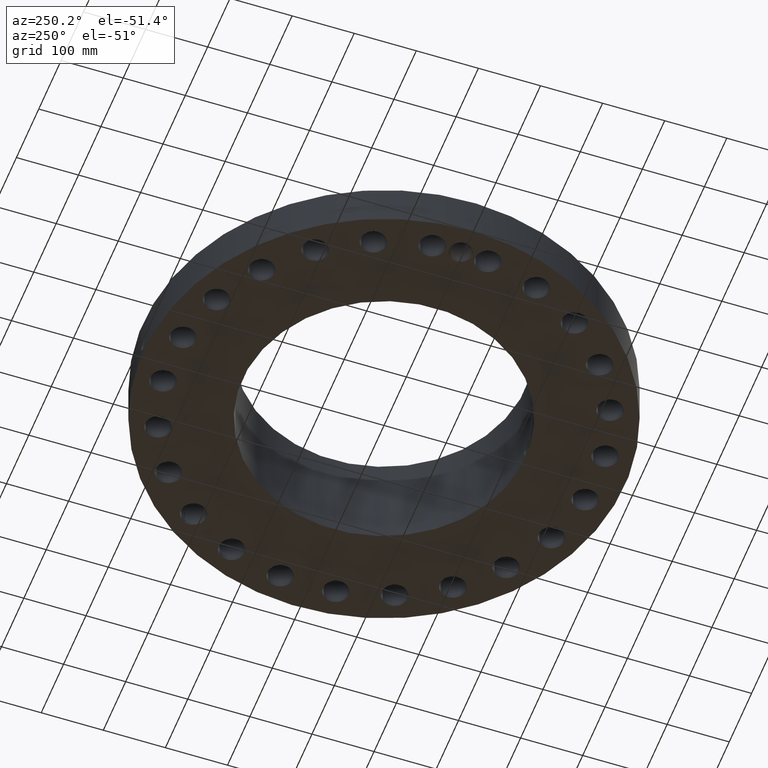
[diagram: clean part render]
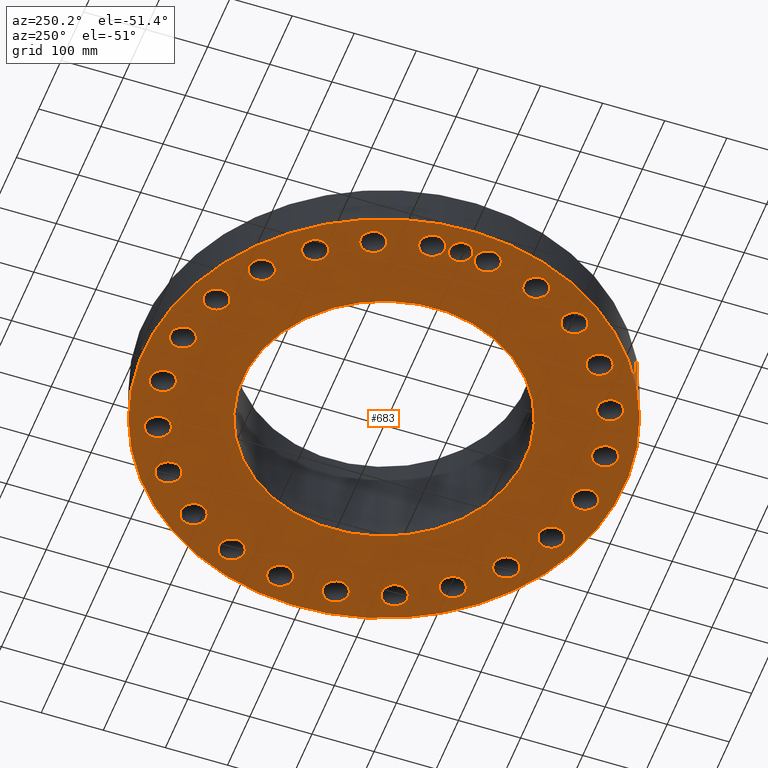
[diagram: same view with one face highlighted and labeled with its STEP entity id]
A machine part, auxiliary view. The second image highlights one B-rep face of the part: STEP entity #683.
In plain terms, the highlighted planar face has unit normal (0, 0, -1).
Its self-contained STEP definition (entity closure, byte-faithful):
#42=AXIS2_PLACEMENT_3D('Circle Axis2P3D',#40,#41,$) ;
#165=AXIS2_PLACEMENT_3D('Plane Axis2P3D',#162,#163,#164) ;
#169=AXIS2_PLACEMENT_3D('Circle Axis2P3D',#167,#168,$) ;
#216=AXIS2_PLACEMENT_3D('Circle Axis2P3D',#214,#215,$) ;
#223=AXIS2_PLACEMENT_3D('Circle Axis2P3D',#221,#222,$) ;
#235=AXIS2_PLACEMENT_3D('Circle Axis2P3D',#233,#234,$) ;
#244=AXIS2_PLACEMENT_3D('Circle Axis2P3D',#242,#243,$) ;
#253=AXIS2_PLACEMENT_3D('Circle Axis2P3D',#251,#252,$) ;
#262=AXIS2_PLACEMENT_3D('Circle Axis2P3D',#260,#261,$) ;
#271=AXIS2_PLACEMENT_3D('Circle Axis2P3D',#269,#270,$) ;
#280=AXIS2_PLACEMENT_3D('Circle Axis2P3D',#278,#279,$) ;
#289=AXIS2_PLACEMENT_3D('Circle Axis2P3D',#287,#288,$) ;
#298=AXIS2_PLACEMENT_3D('Circle Axis2P3D',#296,#297,$) ;
#307=AXIS2_PLACEMENT_3D('Circle Axis2P3D',#305,#306,$) ;
#316=AXIS2_PLACEMENT_3D('Circle Axis2P3D',#314,#315,$) ;
#325=AXIS2_PLACEMENT_3D('Circle Axis2P3D',#323,#324,$) ;
#334=AXIS2_PLACEMENT_3D('Circle Axis2P3D',#332,#333,$) ;
#343=AXIS2_PLACEMENT_3D('Circle Axis2P3D',#341,#342,$) ;
#352=AXIS2_PLACEMENT_3D('Circle Axis2P3D',#350,#351,$) ;
#361=AXIS2_PLACEMENT_3D('Circle Axis2P3D',#359,#360,$) ;
#370=AXIS2_PLACEMENT_3D('Circle Axis2P3D',#368,#369,$) ;
#379=AXIS2_PLACEMENT_3D('Circle Axis2P3D',#377,#378,$) ;
#388=AXIS2_PLACEMENT_3D('Circle Axis2P3D',#386,#387,$) ;
#397=AXIS2_PLACEMENT_3D('Circle Axis2P3D',#395,#396,$) ;
#406=AXIS2_PLACEMENT_3D('Circle Axis2P3D',#404,#405,$) ;
#415=AXIS2_PLACEMENT_3D('Circle Axis2P3D',#413,#414,$) ;
#424=AXIS2_PLACEMENT_3D('Circle Axis2P3D',#422,#423,$) ;
#433=AXIS2_PLACEMENT_3D('Circle Axis2P3D',#431,#432,$) ;
#442=AXIS2_PLACEMENT_3D('Circle Axis2P3D',#440,#441,$) ;
#451=AXIS2_PLACEMENT_3D('Circle Axis2P3D',#449,#450,$) ;
#460=AXIS2_PLACEMENT_3D('Circle Axis2P3D',#458,#459,$) ;
#469=AXIS2_PLACEMENT_3D('Circle Axis2P3D',#467,#468,$) ;
#478=AXIS2_PLACEMENT_3D('Circle Axis2P3D',#476,#477,$) ;
#487=AXIS2_PLACEMENT_3D('Circle Axis2P3D',#485,#486,$) ;
#496=AXIS2_PLACEMENT_3D('Circle Axis2P3D',#494,#495,$) ;
#505=AXIS2_PLACEMENT_3D('Circle Axis2P3D',#503,#504,$) ;
#514=AXIS2_PLACEMENT_3D('Circle Axis2P3D',#512,#513,$) ;
#523=AXIS2_PLACEMENT_3D('Circle Axis2P3D',#521,#522,$) ;
#532=AXIS2_PLACEMENT_3D('Circle Axis2P3D',#530,#531,$) ;
#541=AXIS2_PLACEMENT_3D('Circle Axis2P3D',#539,#540,$) ;
#550=AXIS2_PLACEMENT_3D('Circle Axis2P3D',#548,#549,$) ;
#559=AXIS2_PLACEMENT_3D('Circle Axis2P3D',#557,#558,$) ;
#568=AXIS2_PLACEMENT_3D('Circle Axis2P3D',#566,#567,$) ;
#577=AXIS2_PLACEMENT_3D('Circle Axis2P3D',#575,#576,$) ;
#586=AXIS2_PLACEMENT_3D('Circle Axis2P3D',#584,#585,$) ;
#595=AXIS2_PLACEMENT_3D('Circle Axis2P3D',#593,#594,$) ;
#604=AXIS2_PLACEMENT_3D('Circle Axis2P3D',#602,#603,$) ;
#613=AXIS2_PLACEMENT_3D('Circle Axis2P3D',#611,#612,$) ;
#622=AXIS2_PLACEMENT_3D('Circle Axis2P3D',#620,#621,$) ;
#631=AXIS2_PLACEMENT_3D('Circle Axis2P3D',#629,#630,$) ;
#640=AXIS2_PLACEMENT_3D('Circle Axis2P3D',#638,#639,$) ;
#649=AXIS2_PLACEMENT_3D('Circle Axis2P3D',#647,#648,$) ;
#658=AXIS2_PLACEMENT_3D('Circle Axis2P3D',#656,#657,$) ;
#667=AXIS2_PLACEMENT_3D('Circle Axis2P3D',#665,#666,$) ;
#676=AXIS2_PLACEMENT_3D('Circle Axis2P3D',#674,#675,$) ;
#40=CARTESIAN_POINT('Axis2P3D Location',(0.,0.,0.250000000001)) ;
#44=CARTESIAN_POINT('Vertex',(-7.31123946374,-13.3831340689,0.250000000001)) ;
#46=CARTESIAN_POINT('Vertex',(7.31123946374,13.3831340689,0.250000000001)) ;
#162=CARTESIAN_POINT('Axis2P3D Location',(0.,8.96900000004,0.250000000001)) ;
#167=CARTESIAN_POINT('Axis2P3D Location',(0.,0.,0.250000000001)) ;
#177=CARTESIAN_POINT('Control Point',(-14.2499476785,2.07864575008E-006,0.250000000001)) ;
#178=CARTESIAN_POINT('Control Point',(-14.2476831419,0.0673864982361,0.250000000001)) ;
#179=CARTESIAN_POINT('Control Point',(-14.2378458435,0.134396254622,0.250000000001)) ;
#180=CARTESIAN_POINT('Control Point',(-14.2204993121,0.199863901841,0.250000000001)) ;
#181=CARTESIAN_POINT('Control Point',(-14.1815355115,0.299612610858,0.250000000001)) ;
#182=CARTESIAN_POINT('Control Point',(-14.125856085,0.390120518393,0.250000000001)) ;
#183=CARTESIAN_POINT('Control Point',(-14.1030490587,0.422178490501,0.250000000001)) ;
#184=CARTESIAN_POINT('Control Point',(-14.078202157,0.45257954574,0.250000000001)) ;
#185=CARTESIAN_POINT('Control Point',(-14.0514780087,0.481158000666,0.250000000001)) ;
#186=CARTESIAN_POINT('Vertex',(-14.2499476785,2.07864575148E-006,0.250000000001)) ;
#188=CARTESIAN_POINT('Vertex',(-14.0514780087,0.481158000666,0.250000000001)) ;
#192=CARTESIAN_POINT('Control Point',(-14.2499983879,-0.00155505615411,0.250000000001)) ;
#193=CARTESIAN_POINT('Control Point',(-14.2499885695,-0.00124361367339,0.250000000001)) ;
#194=CARTESIAN_POINT('Control Point',(-14.2499785894,-0.000932178854725,0.250000000001)) ;
#195=CARTESIAN_POINT('Control Point',(-14.2499684475,-0.00062075166267,0.250000000001)) ;
#196=CARTESIAN_POINT('Control Point',(-14.2499581439,-0.00030933250765,0.250000000001)) ;
#197=CARTESIAN_POINT('Control Point',(-14.2499476785,2.07864575232E-006,0.250000000001)) ;
#198=CARTESIAN_POINT('Vertex',(-14.2499983879,-0.00155505615411,0.250000000001)) ;
#202=CARTESIAN_POINT('Control Point',(-14.2499983879,-0.00155505615411,0.250000000001)) ;
#203=CARTESIAN_POINT('Control Point',(-14.2475950517,-0.0689187517196,0.250000000001)) ;
#204=CARTESIAN_POINT('Control Point',(-14.2376238653,-0.135892163343,0.250000000001)) ;
#205=CARTESIAN_POINT('Control Point',(-14.2201409335,-0.20133112632,0.250000000001)) ;
#206=CARTESIAN_POINT('Control Point',(-14.1808725815,-0.301253032829,0.250000000001)) ;
#207=CARTESIAN_POINT('Control Point',(-14.1247918713,-0.391902477713,0.250000000001)) ;
#208=CARTESIAN_POINT('Control Point',(-14.1017334297,-0.424114174655,0.250000000001)) ;
#209=CARTESIAN_POINT('Control Point',(-14.0766075788,-0.454645281021,0.250000000001)) ;
#210=CARTESIAN_POINT('Control Point',(-14.0495799877,-0.483324790223,0.250000000001)) ;
#211=CARTESIAN_POINT('Vertex',(-14.0495799877,-0.483324790223,0.250000000001)) ;
#214=CARTESIAN_POINT('Axis2P3D Location',(-13.5000000001,0.,0.250000000001)) ;
#218=CARTESIAN_POINT('Vertex',(-12.8577192626,-0.350879566067,0.250000000001)) ;
#221=CARTESIAN_POINT('Axis2P3D Location',(-13.5000000001,0.,0.250000000001)) ;
#233=CARTESIAN_POINT('Axis2P3D Location',(13.3845056286,-1.76210359498,0.250000000001)) ;
#237=CARTESIAN_POINT('Vertex',(14.0953475037,-2.15043828125,0.250000000001)) ;
#239=CARTESIAN_POINT('Vertex',(12.6736637535,-1.37376890871,0.250000000001)) ;
#242=CARTESIAN_POINT('Axis2P3D Location',(13.3845056286,-1.76210359498,0.250000000001)) ;
#251=CARTESIAN_POINT('Axis2P3D Location',(0.,0.,0.250000000001)) ;
#255=CARTESIAN_POINT('Vertex',(4.29996765576,7.87103799763,0.250000000001)) ;
#257=CARTESIAN_POINT('Vertex',(-4.29996765576,-7.87103799763,0.250000000001)) ;
#260=CARTESIAN_POINT('Axis2P3D Location',(0.,0.,0.250000000001)) ;
#269=CARTESIAN_POINT('Axis2P3D Location',(12.472373689,-5.16622633695,0.250000000001)) ;
#273=CARTESIAN_POINT('Vertex',(11.886261576,-4.6071444189,0.250000000001)) ;
#275=CARTESIAN_POINT('Vertex',(13.0584858019,-5.725308255,0.250000000001)) ;
#278=CARTESIAN_POINT('Axis2P3D Location',(12.472373689,-5.16622633695,0.250000000001)) ;
#287=CARTESIAN_POINT('Axis2P3D Location',(10.710270094,-8.21827929165,0.250000000001)) ;
#291=CARTESIAN_POINT('Vertex',(10.2888303152,-7.5265506506,0.250000000001)) ;
#293=CARTESIAN_POINT('Vertex',(11.1317098728,-8.9100079327,0.250000000001)) ;
#296=CARTESIAN_POINT('Axis2P3D Location',(10.710270094,-8.21827929165,0.250000000001)) ;
#305=CARTESIAN_POINT('Axis2P3D Location',(8.21827929165,-10.710270094,0.250000000001)) ;
#309=CARTESIAN_POINT('Vertex',(7.99023227142,-9.93303489368,0.250000000001)) ;
#311=CARTESIAN_POINT('Vertex',(8.44632631188,-11.4875052943,0.250000000001)) ;
#314=CARTESIAN_POINT('Axis2P3D Location',(8.21827929165,-10.710270094,0.250000000001)) ;
#323=CARTESIAN_POINT('Axis2P3D Location',(5.16622633695,-12.472373689,0.250000000001)) ;
#327=CARTESIAN_POINT('Vertex',(5.14711310286,-11.6625992239,0.250000000001)) ;
#329=CARTESIAN_POINT('Vertex',(5.18533957104,-13.282148154,0.250000000001)) ;
#332=CARTESIAN_POINT('Axis2P3D Location',(5.16622633695,-12.472373689,0.250000000001)) ;
#341=CARTESIAN_POINT('Axis2P3D Location',(1.76210359498,-13.3845056286,0.250000000001)) ;
#345=CARTESIAN_POINT('Vertex',(1.95322668235,-12.5973766903,0.250000000001)) ;
#347=CARTESIAN_POINT('Vertex',(1.57098050761,-14.1716345669,0.250000000001)) ;
#350=CARTESIAN_POINT('Axis2P3D Location',(1.76210359498,-13.3845056286,0.250000000001)) ;
#359=CARTESIAN_POINT('Axis2P3D Location',(-1.76210359498,-13.3845056286,0.250000000001)) ;
#363=CARTESIAN_POINT('Vertex',(-1.37376890871,-12.6736637535,0.250000000001)) ;
#365=CARTESIAN_POINT('Vertex',(-2.15043828125,-14.0953475037,0.250000000001)) ;
#368=CARTESIAN_POINT('Axis2P3D Location',(-1.76210359498,-13.3845056286,0.250000000001)) ;
#377=CARTESIAN_POINT('Axis2P3D Location',(-5.16622633695,-12.472373689,0.250000000001)) ;
#381=CARTESIAN_POINT('Vertex',(-4.6071444189,-11.886261576,0.250000000001)) ;
#383=CARTESIAN_POINT('Vertex',(-5.725308255,-13.0584858019,0.250000000001)) ;
#386=CARTESIAN_POINT('Axis2P3D Location',(-5.16622633695,-12.472373689,0.250000000001)) ;
#395=CARTESIAN_POINT('Axis2P3D Location',(-8.21827929165,-10.710270094,0.250000000001)) ;
#399=CARTESIAN_POINT('Vertex',(-7.5265506506,-10.2888303152,0.250000000001)) ;
#401=CARTESIAN_POINT('Vertex',(-8.9100079327,-11.1317098728,0.250000000001)) ;
#404=CARTESIAN_POINT('Axis2P3D Location',(-8.21827929165,-10.710270094,0.250000000001)) ;
#413=CARTESIAN_POINT('Axis2P3D Location',(-10.710270094,-8.21827929165,0.250000000001)) ;
#417=CARTESIAN_POINT('Vertex',(-9.93303489368,-7.99023227142,0.250000000001)) ;
#419=CARTESIAN_POINT('Vertex',(-11.4875052943,-8.44632631188,0.250000000001)) ;
#422=CARTESIAN_POINT('Axis2P3D Location',(-10.710270094,-8.21827929165,0.250000000001)) ;
#431=CARTESIAN_POINT('Axis2P3D Location',(-12.472373689,-5.16622633695,0.250000000001)) ;
#435=CARTESIAN_POINT('Vertex',(-11.6625992239,-5.14711310286,0.250000000001)) ;
#437=CARTESIAN_POINT('Vertex',(-13.282148154,-5.18533957104,0.250000000001)) ;
#440=CARTESIAN_POINT('Axis2P3D Location',(-12.472373689,-5.16622633695,0.250000000001)) ;
#449=CARTESIAN_POINT('Axis2P3D Location',(-13.3845056286,-1.76210359498,0.250000000001)) ;
#453=CARTESIAN_POINT('Vertex',(-12.5973766903,-1.95322668235,0.250000000001)) ;
#455=CARTESIAN_POINT('Vertex',(-14.1716345669,-1.57098050761,0.250000000001)) ;
#458=CARTESIAN_POINT('Axis2P3D Location',(-13.3845056286,-1.76210359498,0.250000000001)) ;
#467=CARTESIAN_POINT('Axis2P3D Location',(-13.3845056286,1.76210359498,0.250000000001)) ;
#471=CARTESIAN_POINT('Vertex',(-12.6736637535,1.37376890871,0.250000000001)) ;
#473=CARTESIAN_POINT('Vertex',(-14.0953475037,2.15043828125,0.250000000001)) ;
#476=CARTESIAN_POINT('Axis2P3D Location',(-13.3845056286,1.76210359498,0.250000000001)) ;
#485=CARTESIAN_POINT('Axis2P3D Location',(-12.472373689,5.16622633695,0.250000000001)) ;
#489=CARTESIAN_POINT('Vertex',(-11.886261576,4.6071444189,0.250000000001)) ;
#491=CARTESIAN_POINT('Vertex',(-13.0584858019,5.725308255,0.250000000001)) ;
#494=CARTESIAN_POINT('Axis2P3D Location',(-12.472373689,5.16622633695,0.250000000001)) ;
#503=CARTESIAN_POINT('Axis2P3D Location',(-10.710270094,8.21827929165,0.250000000001)) ;
#507=CARTESIAN_POINT('Vertex',(-10.2888303152,7.5265506506,0.250000000001)) ;
#509=CARTESIAN_POINT('Vertex',(-11.1317098728,8.9100079327,0.250000000001)) ;
#512=CARTESIAN_POINT('Axis2P3D Location',(-10.710270094,8.21827929165,0.250000000001)) ;
#521=CARTESIAN_POINT('Axis2P3D Location',(-8.21827929165,10.710270094,0.250000000001)) ;
#525=CARTESIAN_POINT('Vertex',(-7.99023227142,9.93303489368,0.250000000001)) ;
#527=CARTESIAN_POINT('Vertex',(-8.44632631188,11.4875052943,0.250000000001)) ;
#530=CARTESIAN_POINT('Axis2P3D Location',(-8.21827929165,10.710270094,0.250000000001)) ;
#539=CARTESIAN_POINT('Axis2P3D Location',(-5.16622633695,12.472373689,0.250000000001)) ;
#543=CARTESIAN_POINT('Vertex',(-5.14711310286,11.6625992239,0.250000000001)) ;
#545=CARTESIAN_POINT('Vertex',(-5.18533957104,13.282148154,0.250000000001)) ;
#548=CARTESIAN_POINT('Axis2P3D Location',(-5.16622633695,12.472373689,0.250000000001)) ;
#557=CARTESIAN_POINT('Axis2P3D Location',(-1.76210359498,13.3845056286,0.250000000001)) ;
#561=CARTESIAN_POINT('Vertex',(-1.95322668235,12.5973766903,0.250000000001)) ;
#563=CARTESIAN_POINT('Vertex',(-1.57098050761,14.1716345669,0.250000000001)) ;
#566=CARTESIAN_POINT('Axis2P3D Location',(-1.76210359498,13.3845056286,0.250000000001)) ;
#575=CARTESIAN_POINT('Axis2P3D Location',(1.76210359498,13.3845056286,0.250000000001)) ;
#579=CARTESIAN_POINT('Vertex',(1.37376890871,12.6736637535,0.250000000001)) ;
#581=CARTESIAN_POINT('Vertex',(2.15043828125,14.0953475037,0.250000000001)) ;
#584=CARTESIAN_POINT('Axis2P3D Location',(1.76210359498,13.3845056286,0.250000000001)) ;
#593=CARTESIAN_POINT('Axis2P3D Location',(5.16622633695,12.472373689,0.250000000001)) ;
#597=CARTESIAN_POINT('Vertex',(4.6071444189,11.886261576,0.250000000001)) ;
#599=CARTESIAN_POINT('Vertex',(5.725308255,13.0584858019,0.250000000001)) ;
#602=CARTESIAN_POINT('Axis2P3D Location',(5.16622633695,12.472373689,0.250000000001)) ;
#611=CARTESIAN_POINT('Axis2P3D Location',(8.21827929165,10.710270094,0.250000000001)) ;
#615=CARTESIAN_POINT('Vertex',(7.5265506506,10.2888303152,0.250000000001)) ;
#617=CARTESIAN_POINT('Vertex',(8.9100079327,11.1317098728,0.250000000001)) ;
#620=CARTESIAN_POINT('Axis2P3D Location',(8.21827929165,10.710270094,0.250000000001)) ;
#629=CARTESIAN_POINT('Axis2P3D Location',(10.710270094,8.21827929165,0.250000000001)) ;
#633=CARTESIAN_POINT('Vertex',(9.93303489368,7.99023227142,0.250000000001)) ;
#635=CARTESIAN_POINT('Vertex',(11.4875052943,8.44632631188,0.250000000001)) ;
#638=CARTESIAN_POINT('Axis2P3D Location',(10.710270094,8.21827929165,0.250000000001)) ;
#647=CARTESIAN_POINT('Axis2P3D Location',(12.472373689,5.16622633695,0.250000000001)) ;
#651=CARTESIAN_POINT('Vertex',(11.6625992239,5.14711310286,0.250000000001)) ;
#653=CARTESIAN_POINT('Vertex',(13.282148154,5.18533957104,0.250000000001)) ;
#656=CARTESIAN_POINT('Axis2P3D Location',(12.472373689,5.16622633695,0.250000000001)) ;
#665=CARTESIAN_POINT('Axis2P3D Location',(13.3845056286,1.76210359498,0.250000000001)) ;
#669=CARTESIAN_POINT('Vertex',(12.5973766903,1.95322668235,0.250000000001)) ;
#671=CARTESIAN_POINT('Vertex',(14.1716345669,1.57098050761,0.250000000001)) ;
#674=CARTESIAN_POINT('Axis2P3D Location',(13.3845056286,1.76210359498,0.250000000001)) ;
#41=DIRECTION('Axis2P3D Direction',(0.,0.,-0.0393700787402)) ;
#163=DIRECTION('Axis2P3D Direction',(0.,0.,-0.0393700787402)) ;
#164=DIRECTION('Axis2P3D XDirection',(0.0393700787402,0.,0.)) ;
#168=DIRECTION('Axis2P3D Direction',(0.,0.,-0.0393700787402)) ;
#215=DIRECTION('Axis2P3D Direction',(0.,0.,-0.0393700787402)) ;
#222=DIRECTION('Axis2P3D Direction',(0.,0.,-0.0393700787402)) ;
#234=DIRECTION('Axis2P3D Direction',(0.,0.,-0.0393700787402)) ;
#243=DIRECTION('Axis2P3D Direction',(0.,0.,-0.0393700787402)) ;
#252=DIRECTION('Axis2P3D Direction',(0.,0.,-0.0393700787402)) ;
#261=DIRECTION('Axis2P3D Direction',(0.,0.,-0.0393700787402)) ;
#270=DIRECTION('Axis2P3D Direction',(0.,0.,-0.0393700787402)) ;
#279=DIRECTION('Axis2P3D Direction',(0.,0.,-0.0393700787402)) ;
#288=DIRECTION('Axis2P3D Direction',(0.,0.,-0.0393700787402)) ;
#297=DIRECTION('Axis2P3D Direction',(0.,0.,-0.0393700787402)) ;
#306=DIRECTION('Axis2P3D Direction',(0.,0.,-0.0393700787402)) ;
#315=DIRECTION('Axis2P3D Direction',(0.,0.,-0.0393700787402)) ;
#324=DIRECTION('Axis2P3D Direction',(0.,0.,-0.0393700787402)) ;
#333=DIRECTION('Axis2P3D Direction',(0.,0.,-0.0393700787402)) ;
#342=DIRECTION('Axis2P3D Direction',(0.,0.,-0.0393700787402)) ;
#351=DIRECTION('Axis2P3D Direction',(0.,0.,-0.0393700787402)) ;
#360=DIRECTION('Axis2P3D Direction',(0.,0.,-0.0393700787402)) ;
#369=DIRECTION('Axis2P3D Direction',(0.,0.,-0.0393700787402)) ;
#378=DIRECTION('Axis2P3D Direction',(0.,0.,-0.0393700787402)) ;
#387=DIRECTION('Axis2P3D Direction',(0.,0.,-0.0393700787402)) ;
#396=DIRECTION('Axis2P3D Direction',(0.,0.,-0.0393700787402)) ;
#405=DIRECTION('Axis2P3D Direction',(0.,0.,-0.0393700787402)) ;
#414=DIRECTION('Axis2P3D Direction',(0.,0.,-0.0393700787402)) ;
#423=DIRECTION('Axis2P3D Direction',(0.,0.,-0.0393700787402)) ;
#432=DIRECTION('Axis2P3D Direction',(0.,0.,-0.0393700787402)) ;
#441=DIRECTION('Axis2P3D Direction',(0.,0.,-0.0393700787402)) ;
#450=DIRECTION('Axis2P3D Direction',(0.,0.,-0.0393700787402)) ;
#459=DIRECTION('Axis2P3D Direction',(0.,0.,-0.0393700787402)) ;
#468=DIRECTION('Axis2P3D Direction',(0.,0.,-0.0393700787402)) ;
#477=DIRECTION('Axis2P3D Direction',(0.,0.,-0.0393700787402)) ;
#486=DIRECTION('Axis2P3D Direction',(0.,0.,-0.0393700787402)) ;
#495=DIRECTION('Axis2P3D Direction',(0.,0.,-0.0393700787402)) ;
#504=DIRECTION('Axis2P3D Direction',(0.,0.,-0.0393700787402)) ;
#513=DIRECTION('Axis2P3D Direction',(0.,0.,-0.0393700787402)) ;
#522=DIRECTION('Axis2P3D Direction',(0.,0.,-0.0393700787402)) ;
#531=DIRECTION('Axis2P3D Direction',(0.,0.,-0.0393700787402)) ;
#540=DIRECTION('Axis2P3D Direction',(0.,0.,-0.0393700787402)) ;
#549=DIRECTION('Axis2P3D Direction',(0.,0.,-0.0393700787402)) ;
#558=DIRECTION('Axis2P3D Direction',(0.,0.,-0.0393700787402)) ;
#567=DIRECTION('Axis2P3D Direction',(0.,0.,-0.0393700787402)) ;
#576=DIRECTION('Axis2P3D Direction',(0.,0.,-0.0393700787402)) ;
#585=DIRECTION('Axis2P3D Direction',(0.,0.,-0.0393700787402)) ;
#594=DIRECTION('Axis2P3D Direction',(0.,0.,-0.0393700787402)) ;
#603=DIRECTION('Axis2P3D Direction',(0.,0.,-0.0393700787402)) ;
#612=DIRECTION('Axis2P3D Direction',(0.,0.,-0.0393700787402)) ;
#621=DIRECTION('Axis2P3D Direction',(0.,0.,-0.0393700787402)) ;
#630=DIRECTION('Axis2P3D Direction',(0.,0.,-0.0393700787402)) ;
#639=DIRECTION('Axis2P3D Direction',(0.,0.,-0.0393700787402)) ;
#648=DIRECTION('Axis2P3D Direction',(0.,0.,-0.0393700787402)) ;
#657=DIRECTION('Axis2P3D Direction',(0.,0.,-0.0393700787402)) ;
#666=DIRECTION('Axis2P3D Direction',(0.,0.,-0.0393700787402)) ;
#675=DIRECTION('Axis2P3D Direction',(0.,0.,-0.0393700787402)) ;
#173=ORIENTED_EDGE('',*,*,#48,.T.) ;
#174=ORIENTED_EDGE('',*,*,#171,.T.) ;
#227=ORIENTED_EDGE('',*,*,#190,.F.) ;
#228=ORIENTED_EDGE('',*,*,#200,.F.) ;
#229=ORIENTED_EDGE('',*,*,#213,.T.) ;
#230=ORIENTED_EDGE('',*,*,#220,.F.) ;
#231=ORIENTED_EDGE('',*,*,#225,.F.) ;
#248=ORIENTED_EDGE('',*,*,#241,.F.) ;
#249=ORIENTED_EDGE('',*,*,#246,.F.) ;
#266=ORIENTED_EDGE('',*,*,#259,.F.) ;
#267=ORIENTED_EDGE('',*,*,#264,.F.) ;
#284=ORIENTED_EDGE('',*,*,#277,.F.) ;
#285=ORIENTED_EDGE('',*,*,#282,.F.) ;
#302=ORIENTED_EDGE('',*,*,#295,.F.) ;
#303=ORIENTED_EDGE('',*,*,#300,.F.) ;
#320=ORIENTED_EDGE('',*,*,#313,.F.) ;
#321=ORIENTED_EDGE('',*,*,#318,.F.) ;
#338=ORIENTED_EDGE('',*,*,#331,.F.) ;
#339=ORIENTED_EDGE('',*,*,#336,.F.) ;
#356=ORIENTED_EDGE('',*,*,#349,.F.) ;
#357=ORIENTED_EDGE('',*,*,#354,.F.) ;
#374=ORIENTED_EDGE('',*,*,#367,.F.) ;
#375=ORIENTED_EDGE('',*,*,#372,.F.) ;
#392=ORIENTED_EDGE('',*,*,#385,.F.) ;
#393=ORIENTED_EDGE('',*,*,#390,.F.) ;
#410=ORIENTED_EDGE('',*,*,#403,.F.) ;
#411=ORIENTED_EDGE('',*,*,#408,.F.) ;
#428=ORIENTED_EDGE('',*,*,#421,.F.) ;
#429=ORIENTED_EDGE('',*,*,#426,.F.) ;
#446=ORIENTED_EDGE('',*,*,#439,.F.) ;
#447=ORIENTED_EDGE('',*,*,#444,.F.) ;
#464=ORIENTED_EDGE('',*,*,#457,.F.) ;
#465=ORIENTED_EDGE('',*,*,#462,.F.) ;
#482=ORIENTED_EDGE('',*,*,#475,.F.) ;
#483=ORIENTED_EDGE('',*,*,#480,.F.) ;
#500=ORIENTED_EDGE('',*,*,#493,.F.) ;
#501=ORIENTED_EDGE('',*,*,#498,.F.) ;
#518=ORIENTED_EDGE('',*,*,#511,.F.) ;
#519=ORIENTED_EDGE('',*,*,#516,.F.) ;
#536=ORIENTED_EDGE('',*,*,#529,.F.) ;
#537=ORIENTED_EDGE('',*,*,#534,.F.) ;
#554=ORIENTED_EDGE('',*,*,#547,.F.) ;
#555=ORIENTED_EDGE('',*,*,#552,.F.) ;
#572=ORIENTED_EDGE('',*,*,#565,.F.) ;
#573=ORIENTED_EDGE('',*,*,#570,.F.) ;
#590=ORIENTED_EDGE('',*,*,#583,.F.) ;
#591=ORIENTED_EDGE('',*,*,#588,.F.) ;
#608=ORIENTED_EDGE('',*,*,#601,.F.) ;
#609=ORIENTED_EDGE('',*,*,#606,.F.) ;
#626=ORIENTED_EDGE('',*,*,#619,.F.) ;
#627=ORIENTED_EDGE('',*,*,#624,.F.) ;
#644=ORIENTED_EDGE('',*,*,#637,.F.) ;
#645=ORIENTED_EDGE('',*,*,#642,.F.) ;
#662=ORIENTED_EDGE('',*,*,#655,.F.) ;
#663=ORIENTED_EDGE('',*,*,#660,.F.) ;
#680=ORIENTED_EDGE('',*,*,#673,.F.) ;
#681=ORIENTED_EDGE('',*,*,#678,.F.) ;
#232=FACE_BOUND('',#226,.T.) ;
#250=FACE_BOUND('',#247,.T.) ;
#268=FACE_BOUND('',#265,.T.) ;
#286=FACE_BOUND('',#283,.T.) ;
#304=FACE_BOUND('',#301,.T.) ;
#322=FACE_BOUND('',#319,.T.) ;
#340=FACE_BOUND('',#337,.T.) ;
#358=FACE_BOUND('',#355,.T.) ;
#376=FACE_BOUND('',#373,.T.) ;
#394=FACE_BOUND('',#391,.T.) ;
#412=FACE_BOUND('',#409,.T.) ;
#430=FACE_BOUND('',#427,.T.) ;
#448=FACE_BOUND('',#445,.T.) ;
#466=FACE_BOUND('',#463,.T.) ;
#484=FACE_BOUND('',#481,.T.) ;
#502=FACE_BOUND('',#499,.T.) ;
#520=FACE_BOUND('',#517,.T.) ;
#538=FACE_BOUND('',#535,.T.) ;
#556=FACE_BOUND('',#553,.T.) ;
#574=FACE_BOUND('',#571,.T.) ;
#592=FACE_BOUND('',#589,.T.) ;
#610=FACE_BOUND('',#607,.T.) ;
#628=FACE_BOUND('',#625,.T.) ;
#646=FACE_BOUND('',#643,.T.) ;
#664=FACE_BOUND('',#661,.T.) ;
#682=FACE_BOUND('',#679,.T.) ;
#683=ADVANCED_FACE('PartBody',(#175,#232,#250,#268,#286,#304,#322,#340,#358,#376,#394,#412,#430,#448,#466,#484,#502,#520,#538,#556,#574,#592,#610,#628,#646,#664,#682),#166,.T.) ;
#176=B_SPLINE_CURVE_WITH_KNOTS('',5,(#177,#178,#179,#180,#181,#182,#183,#184,#185),.UNSPECIFIED.,.F.,.U.,(6,3,6),(0.,11.804066446,18.7497654643),.UNSPECIFIED.) ;
#191=B_SPLINE_CURVE_WITH_KNOTS('',5,(#192,#193,#194,#195,#196,#197),.UNSPECIFIED.,.F.,.U.,(6,6),(0.,0.0545514522375),.UNSPECIFIED.) ;
#201=B_SPLINE_CURVE_WITH_KNOTS('',5,(#202,#203,#204,#205,#206,#207,#208,#209,#210),.UNSPECIFIED.,.F.,.U.,(6,3,6),(0.,11.8008933328,18.7839767119),.UNSPECIFIED.) ;
#43=CIRCLE('generated circle',#42,15.2500000001) ;
#170=CIRCLE('generated circle',#169,15.2500000001) ;
#217=CIRCLE('generated circle',#216,0.731875000003) ;
#224=CIRCLE('generated circle',#223,0.731875000003) ;
#236=CIRCLE('generated circle',#235,0.810000000003) ;
#245=CIRCLE('generated circle',#244,0.810000000003) ;
#254=CIRCLE('generated circle',#253,8.96900000004) ;
#263=CIRCLE('generated circle',#262,8.96900000004) ;
#272=CIRCLE('generated circle',#271,0.810000000003) ;
#281=CIRCLE('generated circle',#280,0.810000000003) ;
#290=CIRCLE('generated circle',#289,0.810000000003) ;
#299=CIRCLE('generated circle',#298,0.810000000003) ;
#308=CIRCLE('generated circle',#307,0.810000000003) ;
#317=CIRCLE('generated circle',#316,0.810000000003) ;
#326=CIRCLE('generated circle',#325,0.810000000003) ;
#335=CIRCLE('generated circle',#334,0.810000000003) ;
#344=CIRCLE('generated circle',#343,0.810000000003) ;
#353=CIRCLE('generated circle',#352,0.810000000003) ;
#362=CIRCLE('generated circle',#361,0.810000000003) ;
#371=CIRCLE('generated circle',#370,0.810000000003) ;
#380=CIRCLE('generated circle',#379,0.810000000003) ;
#389=CIRCLE('generated circle',#388,0.810000000003) ;
#398=CIRCLE('generated circle',#397,0.810000000003) ;
#407=CIRCLE('generated circle',#406,0.810000000003) ;
#416=CIRCLE('generated circle',#415,0.810000000003) ;
#425=CIRCLE('generated circle',#424,0.810000000003) ;
#434=CIRCLE('generated circle',#433,0.810000000003) ;
#443=CIRCLE('generated circle',#442,0.810000000003) ;
#452=CIRCLE('generated circle',#451,0.810000000003) ;
#461=CIRCLE('generated circle',#460,0.810000000003) ;
#470=CIRCLE('generated circle',#469,0.810000000003) ;
#479=CIRCLE('generated circle',#478,0.810000000003) ;
#488=CIRCLE('generated circle',#487,0.810000000003) ;
#497=CIRCLE('generated circle',#496,0.810000000003) ;
#506=CIRCLE('generated circle',#505,0.810000000003) ;
#515=CIRCLE('generated circle',#514,0.810000000003) ;
#524=CIRCLE('generated circle',#523,0.810000000003) ;
#533=CIRCLE('generated circle',#532,0.810000000003) ;
#542=CIRCLE('generated circle',#541,0.810000000003) ;
#551=CIRCLE('generated circle',#550,0.810000000003) ;
#560=CIRCLE('generated circle',#559,0.810000000003) ;
#569=CIRCLE('generated circle',#568,0.810000000003) ;
#578=CIRCLE('generated circle',#577,0.810000000003) ;
#587=CIRCLE('generated circle',#586,0.810000000003) ;
#596=CIRCLE('generated circle',#595,0.810000000003) ;
#605=CIRCLE('generated circle',#604,0.810000000003) ;
#614=CIRCLE('generated circle',#613,0.810000000003) ;
#623=CIRCLE('generated circle',#622,0.810000000003) ;
#632=CIRCLE('generated circle',#631,0.810000000003) ;
#641=CIRCLE('generated circle',#640,0.810000000003) ;
#650=CIRCLE('generated circle',#649,0.810000000003) ;
#659=CIRCLE('generated circle',#658,0.810000000003) ;
#668=CIRCLE('generated circle',#667,0.810000000003) ;
#677=CIRCLE('generated circle',#676,0.810000000003) ;
#48=EDGE_CURVE('',#45,#47,#43,.T.) ;
#171=EDGE_CURVE('',#47,#45,#170,.T.) ;
#190=EDGE_CURVE('',#187,#189,#176,.T.) ;
#200=EDGE_CURVE('',#199,#187,#191,.T.) ;
#213=EDGE_CURVE('',#199,#212,#201,.T.) ;
#220=EDGE_CURVE('',#219,#212,#217,.T.) ;
#225=EDGE_CURVE('',#189,#219,#224,.T.) ;
#241=EDGE_CURVE('',#238,#240,#236,.T.) ;
#246=EDGE_CURVE('',#240,#238,#245,.T.) ;
#259=EDGE_CURVE('',#256,#258,#254,.T.) ;
#264=EDGE_CURVE('',#258,#256,#263,.T.) ;
#277=EDGE_CURVE('',#274,#276,#272,.T.) ;
#282=EDGE_CURVE('',#276,#274,#281,.T.) ;
#295=EDGE_CURVE('',#292,#294,#290,.T.) ;
#300=EDGE_CURVE('',#294,#292,#299,.T.) ;
#313=EDGE_CURVE('',#310,#312,#308,.T.) ;
#318=EDGE_CURVE('',#312,#310,#317,.T.) ;
#331=EDGE_CURVE('',#328,#330,#326,.T.) ;
#336=EDGE_CURVE('',#330,#328,#335,.T.) ;
#349=EDGE_CURVE('',#346,#348,#344,.T.) ;
#354=EDGE_CURVE('',#348,#346,#353,.T.) ;
#367=EDGE_CURVE('',#364,#366,#362,.T.) ;
#372=EDGE_CURVE('',#366,#364,#371,.T.) ;
#385=EDGE_CURVE('',#382,#384,#380,.T.) ;
#390=EDGE_CURVE('',#384,#382,#389,.T.) ;
#403=EDGE_CURVE('',#400,#402,#398,.T.) ;
#408=EDGE_CURVE('',#402,#400,#407,.T.) ;
#421=EDGE_CURVE('',#418,#420,#416,.T.) ;
#426=EDGE_CURVE('',#420,#418,#425,.T.) ;
#439=EDGE_CURVE('',#436,#438,#434,.T.) ;
#444=EDGE_CURVE('',#438,#436,#443,.T.) ;
#457=EDGE_CURVE('',#454,#456,#452,.T.) ;
#462=EDGE_CURVE('',#456,#454,#461,.T.) ;
#475=EDGE_CURVE('',#472,#474,#470,.T.) ;
#480=EDGE_CURVE('',#474,#472,#479,.T.) ;
#493=EDGE_CURVE('',#490,#492,#488,.T.) ;
#498=EDGE_CURVE('',#492,#490,#497,.T.) ;
#511=EDGE_CURVE('',#508,#510,#506,.T.) ;
#516=EDGE_CURVE('',#510,#508,#515,.T.) ;
#529=EDGE_CURVE('',#526,#528,#524,.T.) ;
#534=EDGE_CURVE('',#528,#526,#533,.T.) ;
#547=EDGE_CURVE('',#544,#546,#542,.T.) ;
#552=EDGE_CURVE('',#546,#544,#551,.T.) ;
#565=EDGE_CURVE('',#562,#564,#560,.T.) ;
#570=EDGE_CURVE('',#564,#562,#569,.T.) ;
#583=EDGE_CURVE('',#580,#582,#578,.T.) ;
#588=EDGE_CURVE('',#582,#580,#587,.T.) ;
#601=EDGE_CURVE('',#598,#600,#596,.T.) ;
#606=EDGE_CURVE('',#600,#598,#605,.T.) ;
#619=EDGE_CURVE('',#616,#618,#614,.T.) ;
#624=EDGE_CURVE('',#618,#616,#623,.T.) ;
#637=EDGE_CURVE('',#634,#636,#632,.T.) ;
#642=EDGE_CURVE('',#636,#634,#641,.T.) ;
#655=EDGE_CURVE('',#652,#654,#650,.T.) ;
#660=EDGE_CURVE('',#654,#652,#659,.T.) ;
#673=EDGE_CURVE('',#670,#672,#668,.T.) ;
#678=EDGE_CURVE('',#672,#670,#677,.T.) ;
#172=EDGE_LOOP('',(#173,#174)) ;
#226=EDGE_LOOP('',(#227,#228,#229,#230,#231)) ;
#247=EDGE_LOOP('',(#248,#249)) ;
#265=EDGE_LOOP('',(#266,#267)) ;
#283=EDGE_LOOP('',(#284,#285)) ;
#301=EDGE_LOOP('',(#302,#303)) ;
#319=EDGE_LOOP('',(#320,#321)) ;
#337=EDGE_LOOP('',(#338,#339)) ;
#355=EDGE_LOOP('',(#356,#357)) ;
#373=EDGE_LOOP('',(#374,#375)) ;
#391=EDGE_LOOP('',(#392,#393)) ;
#409=EDGE_LOOP('',(#410,#411)) ;
#427=EDGE_LOOP('',(#428,#429)) ;
#445=EDGE_LOOP('',(#446,#447)) ;
#463=EDGE_LOOP('',(#464,#465)) ;
#481=EDGE_LOOP('',(#482,#483)) ;
#499=EDGE_LOOP('',(#500,#501)) ;
#517=EDGE_LOOP('',(#518,#519)) ;
#535=EDGE_LOOP('',(#536,#537)) ;
#553=EDGE_LOOP('',(#554,#555)) ;
#571=EDGE_LOOP('',(#572,#573)) ;
#589=EDGE_LOOP('',(#590,#591)) ;
#607=EDGE_LOOP('',(#608,#609)) ;
#625=EDGE_LOOP('',(#626,#627)) ;
#643=EDGE_LOOP('',(#644,#645)) ;
#661=EDGE_LOOP('',(#662,#663)) ;
#679=EDGE_LOOP('',(#680,#681)) ;
#175=FACE_OUTER_BOUND('',#172,.T.) ;
#166=PLANE('',#165) ;
#45=VERTEX_POINT('',#44) ;
#47=VERTEX_POINT('',#46) ;
#187=VERTEX_POINT('',#186) ;
#189=VERTEX_POINT('',#188) ;
#199=VERTEX_POINT('',#198) ;
#212=VERTEX_POINT('',#211) ;
#219=VERTEX_POINT('',#218) ;
#238=VERTEX_POINT('',#237) ;
#240=VERTEX_POINT('',#239) ;
#256=VERTEX_POINT('',#255) ;
#258=VERTEX_POINT('',#257) ;
#274=VERTEX_POINT('',#273) ;
#276=VERTEX_POINT('',#275) ;
#292=VERTEX_POINT('',#291) ;
#294=VERTEX_POINT('',#293) ;
#310=VERTEX_POINT('',#309) ;
#312=VERTEX_POINT('',#311) ;
#328=VERTEX_POINT('',#327) ;
#330=VERTEX_POINT('',#329) ;
#346=VERTEX_POINT('',#345) ;
#348=VERTEX_POINT('',#347) ;
#364=VERTEX_POINT('',#363) ;
#366=VERTEX_POINT('',#365) ;
#382=VERTEX_POINT('',#381) ;
#384=VERTEX_POINT('',#383) ;
#400=VERTEX_POINT('',#399) ;
#402=VERTEX_POINT('',#401) ;
#418=VERTEX_POINT('',#417) ;
#420=VERTEX_POINT('',#419) ;
#436=VERTEX_POINT('',#435) ;
#438=VERTEX_POINT('',#437) ;
#454=VERTEX_POINT('',#453) ;
#456=VERTEX_POINT('',#455) ;
#472=VERTEX_POINT('',#471) ;
#474=VERTEX_POINT('',#473) ;
#490=VERTEX_POINT('',#489) ;
#492=VERTEX_POINT('',#491) ;
#508=VERTEX_POINT('',#507) ;
#510=VERTEX_POINT('',#509) ;
#526=VERTEX_POINT('',#525) ;
#528=VERTEX_POINT('',#527) ;
#544=VERTEX_POINT('',#543) ;
#546=VERTEX_POINT('',#545) ;
#562=VERTEX_POINT('',#561) ;
#564=VERTEX_POINT('',#563) ;
#580=VERTEX_POINT('',#579) ;
#582=VERTEX_POINT('',#581) ;
#598=VERTEX_POINT('',#597) ;
#600=VERTEX_POINT('',#599) ;
#616=VERTEX_POINT('',#615) ;
#618=VERTEX_POINT('',#617) ;
#634=VERTEX_POINT('',#633) ;
#636=VERTEX_POINT('',#635) ;
#652=VERTEX_POINT('',#651) ;
#654=VERTEX_POINT('',#653) ;
#670=VERTEX_POINT('',#669) ;
#672=VERTEX_POINT('',#671) ;